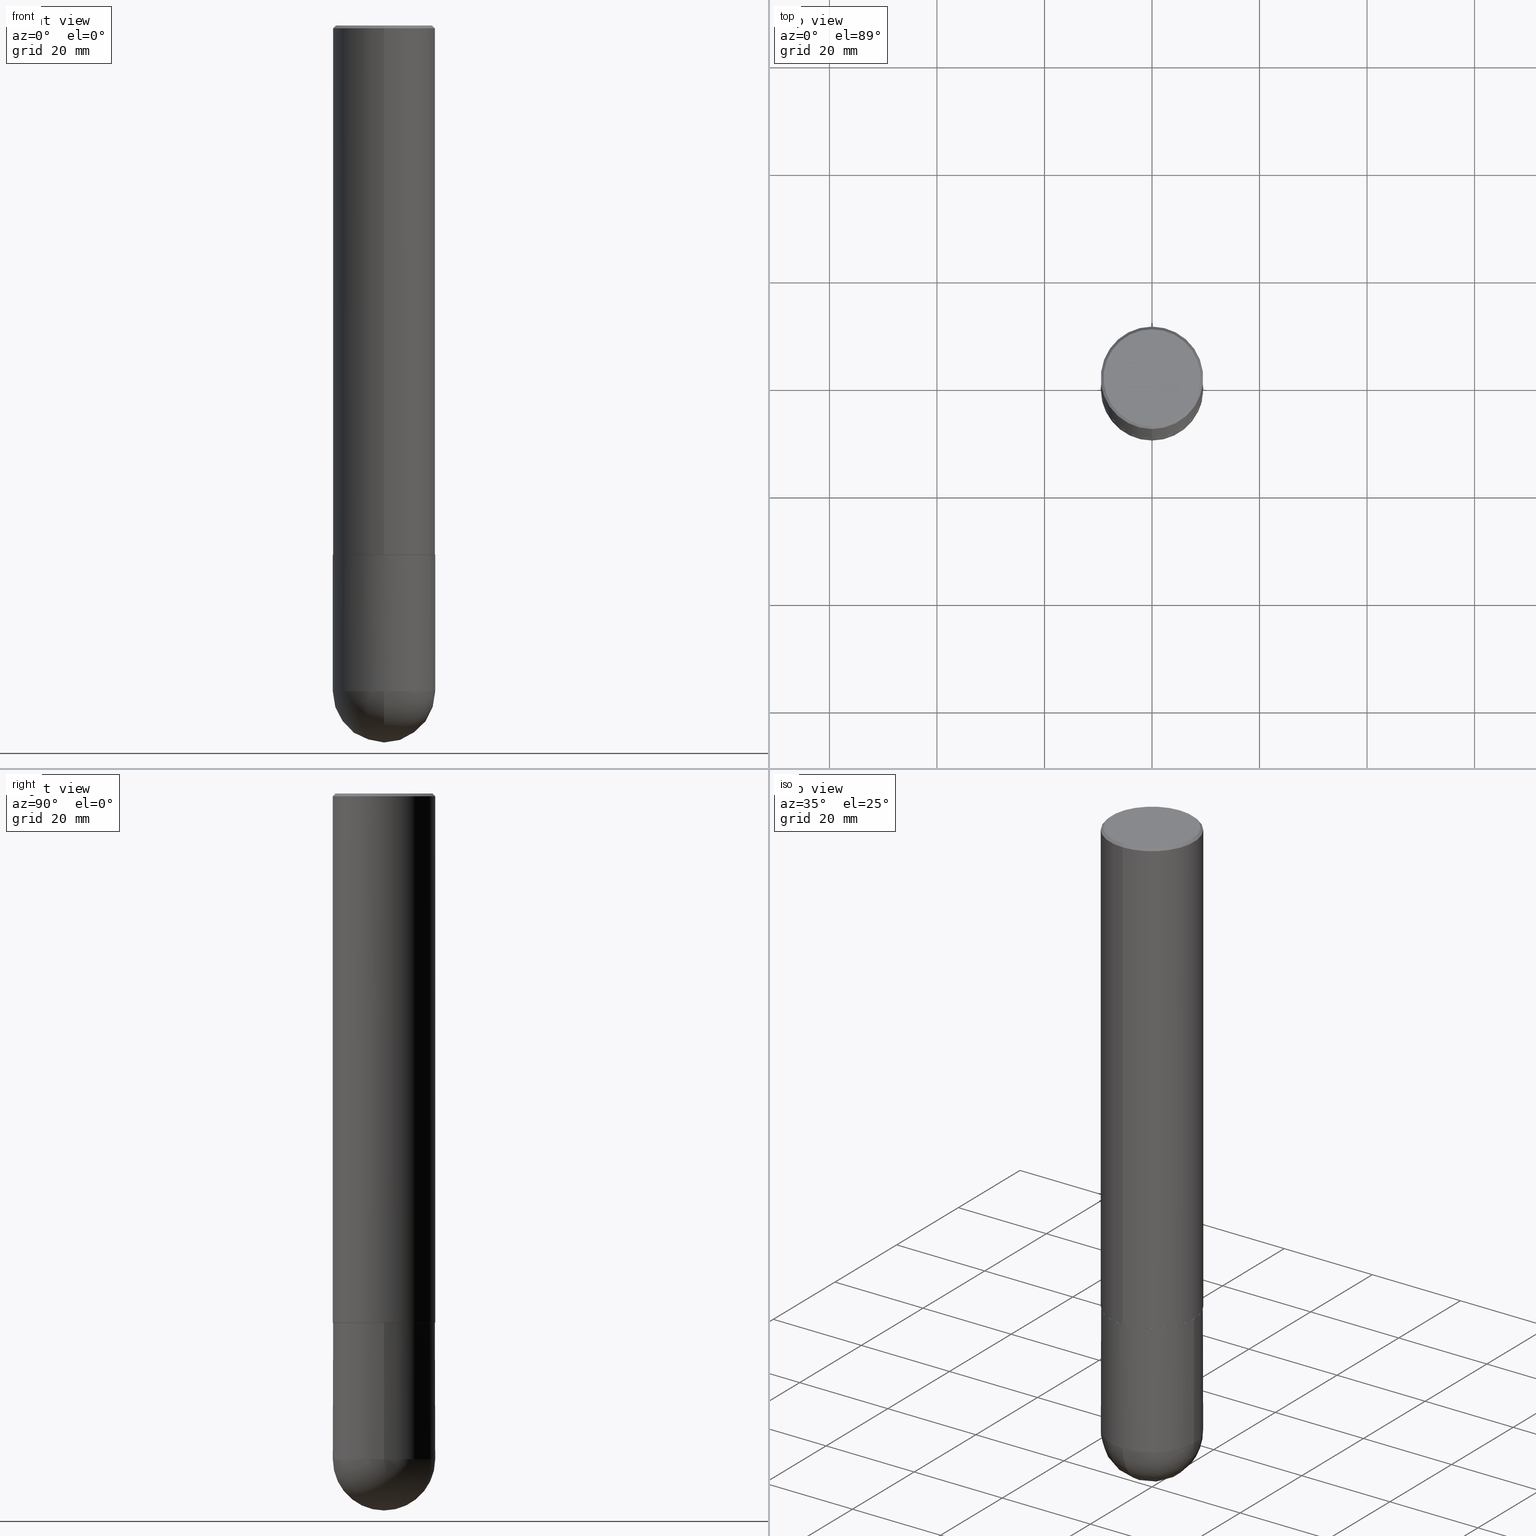
[diagram: canonical four-view strip — front | top / right | iso, engineering-drawing reading convention]
A machine part, canonical four-view strip (front | top / right | iso — engineering-drawing reading convention). The complete STEP part file that produces these views, byte-faithful:
ISO-10303-21;
HEADER;
FILE_DESCRIPTION (( 'STEP AP203' ),
    '1' );
FILE_NAME ('32297.STEP',
    '2024-02-21T17:42:51',
    ( '' ),
    ( '' ),
    'SwSTEP 2.0',
    'SolidWorks 2023',
    '' );
FILE_SCHEMA (( 'CONFIG_CONTROL_DESIGN' ));
ENDSEC;

DATA;
#1 = DIRECTION ( 'NONE',  ( -2.445468806185136597E-29, 3.491481338843145583E-15, 1.000000000000000000 ) ) ;
#2 = EDGE_CURVE ( 'NONE', #81, #117, #255, .T. ) ;
#3 = AXIS2_PLACEMENT_3D ( 'NONE', #305, #393, #34 ) ;
#4 = AXIS2_PLACEMENT_3D ( 'NONE', #386, #92, #218 ) ;
#5 = EDGE_LOOP ( 'NONE', ( #336, #18 ) ) ;
#6 = PERSON_AND_ORGANIZATION_ROLE ( 'creator' ) ;
#7 = DIRECTION ( 'NONE',  ( -2.445496861697833263E-29, 3.491441161752143275E-15, 1.000000000000000000 ) ) ;
#8 = LINE ( 'NONE', #105, #153 ) ;
#9 = EDGE_CURVE ( 'NONE', #362, #295, #199, .T. ) ;
#10 = DIRECTION ( 'NONE',  ( -2.445496861697833263E-29, 3.491441161752143669E-15, 1.000000000000000000 ) ) ;
#11 = AXIS2_PLACEMENT_3D ( 'NONE', #103, #236, #372 ) ;
#12 = CARTESIAN_POINT ( 'NONE',  ( 1.192166043015254091E-28, -1.702097152686033664E-14, -4.875000000000000000 ) ) ;
#13 = CARTESIAN_POINT ( 'NONE',  ( 0.000000000000000000, 0.000000000000000000, 0.000000000000000000 ) ) ;
#14 = CARTESIAN_POINT ( 'NONE',  ( 2.478951750578625787E-15, 0.3550000000000001488, -1.284288125001718683E-15 ) ) ;
#15 = ORIENTED_EDGE ( 'NONE', *, *, #392, .F. ) ;
#16 = AXIS2_PLACEMENT_3D ( 'NONE', #91, #58, #154 ) ;
#17 = DIRECTION ( 'NONE',  ( 5.024295867789777373E-15, 0.7071067811867913777, 0.7071067811863036567 ) ) ;
#18 = ORIENTED_EDGE ( 'NONE', *, *, #9, .T. ) ;
#19 = ORIENTED_EDGE ( 'NONE', *, *, #349, .T. ) ;
#20 = EDGE_LOOP ( 'NONE', ( #229, #292, #15, #367 ) ) ;
#21 = CALENDAR_DATE ( 2024, 21, 2 ) ;
#22 = CIRCLE ( 'NONE', #207, 0.3750000000000000555 ) ;
#23 = PRODUCT_DEFINITION_FORMATION_WITH_SPECIFIED_SOURCE ( 'ANY', '', #41, .NOT_KNOWN. ) ;
#24 = ORIENTED_EDGE ( 'NONE', *, *, #326, .T. ) ;
#25 = CARTESIAN_POINT ( 'NONE',  ( 0.000000000000000000, 0.000000000000000000, 0.000000000000000000 ) ) ;
#26 = PRODUCT_DEFINITION ( 'UNKNOWN', '', #23, #310 ) ;
#27 = LINE ( 'NONE', #256, #317 ) ;
#28 = ORIENTED_EDGE ( 'NONE', *, *, #392, .T. ) ;
#29 = CARTESIAN_POINT ( 'NONE',  ( 9.476300339079104245E-29, -1.352933450178955312E-14, -3.875000000000000000 ) ) ;
#30 = CIRCLE ( 'NONE', #401, 0.3750000000000001110 ) ;
#31 =( GEOMETRIC_REPRESENTATION_CONTEXT ( 3 ) GLOBAL_UNCERTAINTY_ASSIGNED_CONTEXT ( ( #291 ) ) GLOBAL_UNIT_ASSIGNED_CONTEXT ( ( #265, #268, #194 ) ) REPRESENTATION_CONTEXT ( 'NONE', 'WORKASPACE' ) );
#32 = EDGE_LOOP ( 'NONE', ( #28, #111, #321, #331 ) ) ;
#33 = MANIFOLD_SOLID_BREP ( 'Body-Move/Copy2[1]', #106 ) ;
#34 = DIRECTION ( 'NONE',  ( -6.982962677686265922E-15, -1.000000000000000000, 3.491441161752143669E-15 ) ) ;
#35 = PERSON_AND_ORGANIZATION ( #359, #107 ) ;
#36 = CARTESIAN_POINT ( 'NONE',  ( 0.3750000000000001110, -2.618611004132350411E-15, 1.828566290923476483E-29 ) ) ;
#37 = DIRECTION ( 'NONE',  ( 4.937700262164538576E-15, 0.7071067811865437980, -0.7071067811865512365 ) ) ;
#38 = DIRECTION ( 'NONE',  ( -2.445468806185136597E-29, 3.491481338843145583E-15, 1.000000000000000000 ) ) ;
#39 = EDGE_CURVE ( 'NONE', #182, #354, #287, .T. ) ;
#40 = DIRECTION ( 'NONE',  ( -2.445468806185136597E-29, 3.491481338843145583E-15, 1.000000000000000000 ) ) ;
#41 = PRODUCT ( '32297', '32297', '', ( #73 ) ) ;
#42 = CARTESIAN_POINT ( 'NONE',  ( 0.000000000000000000, 0.000000000000000000, 0.000000000000000000 ) ) ;
#43 = CARTESIAN_POINT ( 'NONE',  ( 4.890993723395688036E-31, -6.982882323504315786E-17, -0.02000000000000008715 ) ) ;
#44 = CARTESIAN_POINT ( 'NONE',  ( 1.252362582248019568E-28, -1.878149726958255384E-14, -5.250000000000000000 ) ) ;
#45 = DIRECTION ( 'NONE',  ( 0.000000000000000000, 0.000000000000000000, 1.000000000000000000 ) ) ;
#46 = CARTESIAN_POINT ( 'NONE',  ( 2.618611004132444680E-15, 0.3749999999999865108, -3.875000000000001332 ) ) ;
#47 = DIRECTION ( 'NONE',  ( 1.000000000000000000, -6.982962677686265922E-15, 4.876176775795935793E-29 ) ) ;
#48 = EDGE_CURVE ( 'NONE', #158, #300, #252, .T. ) ;
#49 = DIRECTION ( 'NONE',  ( -2.445496861697833263E-29, 3.491441161752143275E-15, 1.000000000000000000 ) ) ;
#50 = DIRECTION ( 'NONE',  ( -1.000000000000000000, 7.105427357601001070E-15, -4.926315508542082329E-29 ) ) ;
#51 = LOCAL_TIME ( 12, 42, 51.00000000000000000, #360 ) ;
#52 = EDGE_CURVE ( 'NONE', #100, #117, #22, .T. ) ;
#53 = CC_DESIGN_PERSON_AND_ORGANIZATION_ASSIGNMENT ( #394, #201, ( #41 ) ) ;
#54 = ORIENTED_EDGE ( 'NONE', *, *, #183, .T. ) ;
#55 = AXIS2_PLACEMENT_3D ( 'NONE', #332, #262, #264 ) ;
#56 = ORIENTED_EDGE ( 'NONE', *, *, #2, .T. ) ;
#57 = AXIS2_PLACEMENT_3D ( 'NONE', #157, #185, #323 ) ;
#58 = DIRECTION ( 'NONE',  ( -2.445496861697833263E-29, 3.491441161752143275E-15, 1.000000000000000000 ) ) ;
#59 = FACE_OUTER_BOUND ( 'NONE', #348, .T. ) ;
#60 = CIRCLE ( 'NONE', #314, 0.3750000000000004996 ) ;
#61 = ADVANCED_FACE ( 'NONE', ( #129 ), #328, .T. ) ;
#62 = CC_DESIGN_APPROVAL ( #152, ( #26 ) ) ;
#63 = EDGE_LOOP ( 'NONE', ( #285, #116 ) ) ;
#64 = FACE_OUTER_BOUND ( 'NONE', #32, .T. ) ;
#65 = CALENDAR_DATE ( 2024, 21, 2 ) ;
#66 = ORIENTED_EDGE ( 'NONE', *, *, #68, .T. ) ;
#67 = APPLICATION_CONTEXT ( 'configuration controlled 3d designs of mechanical parts and assemblies' ) ;
#68 = EDGE_CURVE ( 'NONE', #301, #94, #296, .T. ) ;
#69 = CARTESIAN_POINT ( 'NONE',  ( 9.476191623967404313E-29, -1.352949018801718908E-14, -3.875000000000000000 ) ) ;
#70 = COORDINATED_UNIVERSAL_TIME_OFFSET ( 5, 0, .BEHIND. ) ;
#71 = DIRECTION ( 'NONE',  ( -6.982962677686265922E-15, -1.000000000000000000, 3.494488891895535640E-15 ) ) ;
#72 = CONICAL_SURFACE ( 'NONE', #357, 0.3739999999999999991, 0.7853981633977896726 ) ;
#73 = MECHANICAL_CONTEXT ( 'NONE', #67, 'mechanical' ) ;
#74 = PLANE ( 'NONE',  #389 ) ;
#75 = PRODUCT_DEFINITION_SHAPE ( 'NONE', 'NONE',  #26 ) ;
#76 = LINE ( 'NONE', #403, #155 ) ;
#77 = APPLICATION_PROTOCOL_DEFINITION ( 'international standard', 'config_control_design', 1994, #67 ) ;
#78 = CARTESIAN_POINT ( 'NONE',  ( -2.618611004132258903E-15, -0.3750000000000140443, -3.873999999999999222 ) ) ;
#79 = AXIS2_PLACEMENT_3D ( 'NONE', #25, #277, #47 ) ;
#80 = LOCAL_TIME ( 12, 42, 51.00000000000000000, #251 ) ;
#81 = VERTEX_POINT ( 'NONE', #189 ) ;
#82 = CARTESIAN_POINT ( 'NONE',  ( 2.618611004132351200E-15, 0.3750000000000000555, -0.02000000000000139513 ) ) ;
#83 = ADVANCED_FACE ( 'NONE', ( #59 ), #408, .F. ) ;
#84 = SPHERICAL_SURFACE ( 'NONE', #281, 0.3750000000000001110 ) ;
#85 = CC_DESIGN_APPROVAL ( #272, ( #175 ) ) ;
#86 = CARTESIAN_POINT ( 'NONE',  ( 9.476191623967404313E-29, -1.352949018801718908E-14, -3.875000000000000000 ) ) ;
#87 = ORIENTED_EDGE ( 'NONE', *, *, #122, .F. ) ;
#88 = PERSON_AND_ORGANIZATION ( #359, #107 ) ;
#89 = ORIENTED_EDGE ( 'NONE', *, *, #171, .T. ) ;
#90 = CARTESIAN_POINT ( 'NONE',  ( -2.611628041454568944E-15, -0.3740000000000135438, -3.874999999999999112 ) ) ;
#91 = CARTESIAN_POINT ( 'NONE',  ( 2.192461916690650386E-45, -3.130182623171802630E-31, -8.965302515941450071E-17 ) ) ;
#92 = DIRECTION ( 'NONE',  ( -2.445496861697833263E-29, 3.491441161752143275E-15, 1.000000000000000000 ) ) ;
#93 = PERSON_AND_ORGANIZATION_ROLE ( 'creator' ) ;
#94 = VERTEX_POINT ( 'NONE', #90 ) ;
#95 = LENGTH_MEASURE_WITH_UNIT ( LENGTH_MEASURE( 0.02539999999999999897 ), #355 );
#96 = VECTOR ( 'NONE', #37, 39.37007874015748143 ) ;
#97 = CC_DESIGN_APPROVAL ( #244, ( #23 ) ) ;
#98 = DIRECTION ( 'NONE',  ( -6.982962677686265922E-15, -1.000000000000000000, 3.494488891895535640E-15 ) ) ;
#99 = EDGE_CURVE ( 'NONE', #295, #362, #104, .T. ) ;
#100 = VERTEX_POINT ( 'NONE', #223 ) ;
#101 = DATE_TIME_ROLE ( 'creation_date' ) ;
#102 = ADVANCED_BREP_SHAPE_REPRESENTATION ( '32297', ( #33, #329, #168 ), #31 ) ;
#103 = CARTESIAN_POINT ( 'NONE',  ( 1.159054065223865578E-28, -1.749515389500038536E-14, -4.875000000000000000 ) ) ;
#104 = CIRCLE ( 'NONE', #304, 0.3550000000000001488 ) ;
#105 = CARTESIAN_POINT ( 'NONE',  ( -2.611628041454568944E-15, -0.3740000000000135438, -3.874999999999999112 ) ) ;
#106 = CLOSED_SHELL ( 'NONE', ( #219, #202, #366, #151, #374 ) ) ;
#107 = ORGANIZATION ( 'UNSPECIFIED', 'UNSPECIFIED', '' ) ;
#108 = DIRECTION ( 'NONE',  ( -6.982962677686266711E-15, -1.000000000000000000, 2.913971193241876822E-15 ) ) ;
#109 = ORIENTED_EDGE ( 'NONE', *, *, #195, .T. ) ;
#110 = LINE ( 'NONE', #210, #181 ) ;
#111 = ORIENTED_EDGE ( 'NONE', *, *, #383, .T. ) ;
#112 = CARTESIAN_POINT ( 'NONE',  ( 4.890993723395688036E-31, -6.982882323504315786E-17, -0.02000000000000008715 ) ) ;
#113 = ORIENTED_EDGE ( 'NONE', *, *, #283, .F. ) ;
#114 = ORIENTED_EDGE ( 'NONE', *, *, #52, .F. ) ;
#115 = CC_DESIGN_PERSON_AND_ORGANIZATION_ASSIGNMENT ( #124, #93, ( #23 ) ) ;
#116 = ORIENTED_EDGE ( 'NONE', *, *, #52, .T. ) ;
#117 = VERTEX_POINT ( 'NONE', #361 ) ;
#118 = ADVANCED_FACE ( 'NONE', ( #190 ), #72, .T. ) ;
#119 = CYLINDRICAL_SURFACE ( 'NONE', #57, 0.3750000000000001110 ) ;
#120 = AXIS2_PLACEMENT_3D ( 'NONE', #46, #375, #239 ) ;
#121 = DIRECTION ( 'NONE',  ( -6.982962677686266711E-15, -1.000000000000000000, 3.491441161752143275E-15 ) ) ;
#122 = EDGE_CURVE ( 'NONE', #117, #100, #315, .T. ) ;
#123 = ORIENTED_EDGE ( 'NONE', *, *, #192, .F. ) ;
#124 = PERSON_AND_ORGANIZATION ( #359, #107 ) ;
#125 = DIRECTION ( 'NONE',  ( -2.445496861697833263E-29, 3.491441161752143275E-15, 1.000000000000000000 ) ) ;
#126 = ORIENTED_EDGE ( 'NONE', *, *, #316, .F. ) ;
#127 = CIRCLE ( 'NONE', #234, 0.3739999999999999991 ) ;
#128 = CC_DESIGN_PERSON_AND_ORGANIZATION_ASSIGNMENT ( #88, #293, ( #23 ) ) ;
#129 = FACE_OUTER_BOUND ( 'NONE', #20, .T. ) ;
#130 = APPLICATION_CONTEXT ( 'configuration controlled 3d designs of mechanical parts and assemblies' ) ;
#131 = DIRECTION ( 'NONE',  ( -4.937700262166233838E-15, -0.7071067811867864927, 0.7071067811863085417 ) ) ;
#132 = AXIS2_PLACEMENT_3D ( 'NONE', #276, #172, #369 ) ;
#133 = LOCAL_TIME ( 12, 42, 51.00000000000000000, #204 ) ;
#134 = EDGE_CURVE ( 'NONE', #94, #301, #127, .T. ) ;
#135 = CARTESIAN_POINT ( 'NONE',  ( 9.473854842217407742E-29, -1.352584306062780307E-14, -3.874000000000000110 ) ) ;
#136 = DIRECTION ( 'NONE',  ( 6.982962677686265922E-15, 1.000000000000000000, -3.494488891895535640E-15 ) ) ;
#137 = DIRECTION ( 'NONE',  ( -2.445468806185136597E-29, 3.491481338843145583E-15, 1.000000000000000000 ) ) ;
#138 = ADVANCED_FACE ( 'NONE', ( #166 ), #74, .F. ) ;
#139 = ADVANCED_FACE ( 'NONE', ( #238 ), #409, .T. ) ;
#140 = VECTOR ( 'NONE', #385, 39.37007874015748143 ) ;
#141 = DIRECTION ( 'NONE',  ( 1.000000000000000000, -6.982962677686260400E-15, 0.000000000000000000 ) ) ;
#142 = FACE_OUTER_BOUND ( 'NONE', #178, .T. ) ;
#143 = FACE_OUTER_BOUND ( 'NONE', #173, .T. ) ;
#144 = CARTESIAN_POINT ( 'NONE',  ( 2.657429831742868958E-15, 0.3739999999999865099, -3.875000000000001332 ) ) ;
#145 = ORIENTED_EDGE ( 'NONE', *, *, #179, .F. ) ;
#146 = DIRECTION ( 'NONE',  ( 6.982962677686265922E-15, 1.000000000000000000, -2.913971193241879977E-15 ) ) ;
#147 = EDGE_LOOP ( 'NONE', ( #211, #363, #156, #109 ) ) ;
#148 = CALENDAR_DATE ( 2024, 21, 2 ) ;
#149 = AXIS2_PLACEMENT_3D ( 'NONE', #402, #233, #136 ) ;
#150 = APPROVAL_DATE_TIME ( #248, #244 ) ;
#151 = ADVANCED_FACE ( 'NONE', ( #312 ), #397, .F. ) ;
#152 = APPROVAL ( #237, 'UNSPECIFIED' ) ;
#153 = VECTOR ( 'NONE', #131, 39.37007874015748143 ) ;
#154 = DIRECTION ( 'NONE',  ( -6.982962677686266711E-15, -1.000000000000000000, 3.491441161752143275E-15 ) ) ;
#155 = VECTOR ( 'NONE', #169, 39.37007874015748143 ) ;
#156 = ORIENTED_EDGE ( 'NONE', *, *, #316, .T. ) ;
#157 = CARTESIAN_POINT ( 'NONE',  ( 0.000000000000000000, 0.000000000000000000, 0.000000000000000000 ) ) ;
#158 = VERTEX_POINT ( 'NONE', #376 ) ;
#159 = CARTESIAN_POINT ( 'NONE',  ( 2.192461916690650386E-45, -3.130182623171802630E-31, -8.965302515941450071E-17 ) ) ;
#160 = APPROVAL_STATUS ( 'not_yet_approved' ) ;
#161 = ORIENTED_EDGE ( 'NONE', *, *, #247, .F. ) ;
#162 = CARTESIAN_POINT ( 'NONE',  ( 0.000000000000000000, 0.000000000000000000, 0.000000000000000000 ) ) ;
#163 = LINE ( 'NONE', #203, #245 ) ;
#164 = CARTESIAN_POINT ( 'NONE',  ( 2.660982545421671434E-15, 0.3739999999999865099, -3.875000000000001332 ) ) ;
#165 = PERSON_AND_ORGANIZATION ( #359, #107 ) ;
#166 = FACE_OUTER_BOUND ( 'NONE', #5, .T. ) ;
#167 = CIRCLE ( 'NONE', #406, 0.3750000000000001110 ) ;
#168 = AXIS2_PLACEMENT_3D ( 'NONE', #42, #45, #373 ) ;
#169 = DIRECTION ( 'NONE',  ( -2.445468806185136877E-29, 3.491481338843145188E-15, 1.000000000000000000 ) ) ;
#170 = FACE_OUTER_BOUND ( 'NONE', #224, .T. ) ;
#171 = EDGE_CURVE ( 'NONE', #94, #177, #8, .T. ) ;
#172 = DIRECTION ( 'NONE',  ( -2.445468806185136597E-29, 3.491481338843145583E-15, 1.000000000000000000 ) ) ;
#173 = EDGE_LOOP ( 'NONE', ( #214, #24, #87, #250, #196 ) ) ;
#174 = AXIS2_PLACEMENT_3D ( 'NONE', #368, #412, #98 ) ;
#175 = SECURITY_CLASSIFICATION ( '', '', #217 ) ;
#176 = DIRECTION ( 'NONE',  ( -6.982962677686266711E-15, -1.000000000000000000, 3.491441161752143669E-15 ) ) ;
#177 = VERTEX_POINT ( 'NONE', #78 ) ;
#178 = EDGE_LOOP ( 'NONE', ( #286, #191, #319, #193 ) ) ;
#179 = EDGE_CURVE ( 'NONE', #405, #81, #351, .T. ) ;
#180 = VECTOR ( 'NONE', #17, 39.37007874015748143 ) ;
#181 = VECTOR ( 'NONE', #278, 39.37007874015748143 ) ;
#182 = VERTEX_POINT ( 'NONE', #206 ) ;
#183 = EDGE_CURVE ( 'NONE', #340, #405, #30, .T. ) ;
#184 = EDGE_LOOP ( 'NONE', ( #258, #380, #123, #145 ) ) ;
#185 = DIRECTION ( 'NONE',  ( -2.445468806185136597E-29, 3.491481338843145583E-15, 1.000000000000000000 ) ) ;
#186 = CC_DESIGN_PERSON_AND_ORGANIZATION_ASSIGNMENT ( #356, #320, ( #175 ) ) ;
#187 = PERSON_AND_ORGANIZATION ( #359, #107 ) ;
#188 = DIRECTION ( 'NONE',  ( -2.445468806185136597E-29, 3.491481338843145583E-15, 1.000000000000000000 ) ) ;
#189 = CARTESIAN_POINT ( 'NONE',  ( 0.3750000000000001110, -1.789384186157111051E-14, -4.875000000000000000 ) ) ;
#190 = FACE_OUTER_BOUND ( 'NONE', #379, .T. ) ;
#191 = ORIENTED_EDGE ( 'NONE', *, *, #247, .T. ) ;
#192 = EDGE_CURVE ( 'NONE', #81, #158, #267, .T. ) ;
#193 = ORIENTED_EDGE ( 'NONE', *, *, #195, .F. ) ;
#194 =( NAMED_UNIT ( * ) SI_UNIT ( $, .STERADIAN. ) SOLID_ANGLE_UNIT ( ) );
#195 = EDGE_CURVE ( 'NONE', #354, #182, #205, .T. ) ;
#196 = ORIENTED_EDGE ( 'NONE', *, *, #192, .T. ) ;
#197 = CARTESIAN_POINT ( 'NONE',  ( 9.476300339079104245E-29, -1.352933450178955312E-14, -3.875000000000000000 ) ) ;
#198 = CARTESIAN_POINT ( 'NONE',  ( -0.3750000000000001110, -1.261069559833838637E-14, -4.875000000000000000 ) ) ;
#199 = CIRCLE ( 'NONE', #16, 0.3550000000000001488 ) ;
#200 = DIMENSIONAL_EXPONENTS ( 1.000000000000000000, 0.000000000000000000, 0.000000000000000000, 0.000000000000000000, 0.000000000000000000, 0.000000000000000000, 0.000000000000000000 ) ;
#201 = PERSON_AND_ORGANIZATION_ROLE ( 'design_owner' ) ;
#202 = ADVANCED_FACE ( 'NONE', ( #170 ), #395, .T. ) ;
#203 = CARTESIAN_POINT ( 'NONE',  ( -2.618611004132351989E-15, -0.3750000000000002776, 1.309290435657054813E-15 ) ) ;
#204 = COORDINATED_UNIVERSAL_TIME_OFFSET ( 5, 0, .BEHIND. ) ;
#205 = CIRCLE ( 'NONE', #381, 0.3750000000000001110 ) ;
#206 = CARTESIAN_POINT ( 'NONE',  ( -2.572686749164324336E-15, -0.3750000000000001665, -0.01999999999999877570 ) ) ;
#207 = AXIS2_PLACEMENT_3D ( 'NONE', #69, #38, #226 ) ;
#208 = FACE_OUTER_BOUND ( 'NONE', #216, .T. ) ;
#209 = PRODUCT_RELATED_PRODUCT_CATEGORY ( 'detail', '', ( #41 ) ) ;
#210 = CARTESIAN_POINT ( 'NONE',  ( -2.572686749164324336E-15, -0.3750000000000001665, -0.01999999999999877570 ) ) ;
#211 = ORIENTED_EDGE ( 'NONE', *, *, #349, .F. ) ;
#212 = DIRECTION ( 'NONE',  ( 1.000000000000000000, -6.982962677686265922E-15, 4.883557194083112340E-29 ) ) ;
#213 = AXIS2_PLACEMENT_3D ( 'NONE', #343, #40, #347 ) ;
#214 = ORIENTED_EDGE ( 'NONE', *, *, #48, .T. ) ;
#215 = EDGE_CURVE ( 'NONE', #177, #182, #163, .T. ) ;
#216 = EDGE_LOOP ( 'NONE', ( #282, #19, #384, #126 ) ) ;
#217 = SECURITY_CLASSIFICATION_LEVEL ( 'unclassified' ) ;
#218 = DIRECTION ( 'NONE',  ( -6.982962677686266711E-15, -1.000000000000000000, 2.913971193241876822E-15 ) ) ;
#219 = ADVANCED_FACE ( 'NONE', ( #143 ), #318, .T. ) ;
#220 = ORIENTED_EDGE ( 'NONE', *, *, #48, .F. ) ;
#221 = DATE_TIME_ROLE ( 'classification_date' ) ;
#222 = APPROVAL_DATE_TIME ( #411, #272 ) ;
#223 = CARTESIAN_POINT ( 'NONE',  ( -0.3750000000000000555, -1.261069559833838480E-14, -3.875000000000000000 ) ) ;
#224 = EDGE_LOOP ( 'NONE', ( #350, #54, #260, #220 ) ) ;
#225 = SHAPE_DEFINITION_REPRESENTATION ( #75, #102 ) ;
#226 = DIRECTION ( 'NONE',  ( 1.000000000000000000, -6.982962677686266711E-15, 0.000000000000000000 ) ) ;
#227 = CARTESIAN_POINT ( 'NONE',  ( -2.664535259100258157E-15, -0.3750000000000173195, -4.874999999999999112 ) ) ;
#228 = CIRCLE ( 'NONE', #261, 0.3750000000000001110 ) ;
#229 = ORIENTED_EDGE ( 'NONE', *, *, #134, .T. ) ;
#230 = EDGE_CURVE ( 'NONE', #300, #405, #167, .T. ) ;
#231 = DIRECTION ( 'NONE',  ( -2.445496861697833263E-29, 3.491441161752143275E-15, 1.000000000000000000 ) ) ;
#232 = ORIENTED_EDGE ( 'NONE', *, *, #179, .T. ) ;
#233 = DIRECTION ( 'NONE',  ( 2.445496861697833263E-29, -3.491441161752143275E-15, -1.000000000000000000 ) ) ;
#234 = AXIS2_PLACEMENT_3D ( 'NONE', #242, #270, #342 ) ;
#235 = LOCAL_TIME ( 12, 42, 51.00000000000000000, #365 ) ;
#236 = DIRECTION ( 'NONE',  ( -1.000000000000000000, 6.982962677686265922E-15, -4.883557194083112340E-29 ) ) ;
#237 = APPROVAL_STATUS ( 'not_yet_approved' ) ;
#238 = FACE_OUTER_BOUND ( 'NONE', #147, .T. ) ;
#239 = DIRECTION ( 'NONE',  ( -1.000000000000000000, 6.982962677686265922E-15, -4.876176775795935793E-29 ) ) ;
#240 = AXIS2_PLACEMENT_3D ( 'NONE', #162, #7, #333 ) ;
#241 = CARTESIAN_POINT ( 'NONE',  ( 1.159054065223865578E-28, -1.749515389500038536E-14, -4.875000000000000000 ) ) ;
#242 = CARTESIAN_POINT ( 'NONE',  ( 9.476300339079104245E-29, -1.352933450178955312E-14, -3.875000000000000000 ) ) ;
#243 = DIRECTION ( 'NONE',  ( 6.982962677686265922E-15, 1.000000000000000000, -3.494488891895535640E-15 ) ) ;
#244 = APPROVAL ( #160, 'UNSPECIFIED' ) ;
#245 = VECTOR ( 'NONE', #10, 39.37007874015748143 ) ;
#246 = DIRECTION ( 'NONE',  ( -2.445496861697833263E-29, 3.491441161752143669E-15, 1.000000000000000000 ) ) ;
#247 = EDGE_CURVE ( 'NONE', #299, #177, #60, .T. ) ;
#248 = DATE_AND_TIME ( #21, #269 ) ;
#249 = ORIENTED_EDGE ( 'NONE', *, *, #230, .T. ) ;
#250 = ORIENTED_EDGE ( 'NONE', *, *, #2, .F. ) ;
#251 = COORDINATED_UNIVERSAL_TIME_OFFSET ( 5, 0, .BEHIND. ) ;
#252 = CIRCLE ( 'NONE', #279, 0.3750000000000001110 ) ;
#253 = APPROVAL_ROLE ( '' ) ;
#254 = DIRECTION ( 'NONE',  ( -2.445496861697833263E-29, 3.491441161752143275E-15, 1.000000000000000000 ) ) ;
#255 = LINE ( 'NONE', #36, #140 ) ;
#256 = CARTESIAN_POINT ( 'NONE',  ( 2.664535259100377275E-15, 0.3750000000000002776, -1.309290435657054813E-15 ) ) ;
#257 = EDGE_CURVE ( 'NONE', #340, #158, #228, .T. ) ;
#258 = ORIENTED_EDGE ( 'NONE', *, *, #183, .F. ) ;
#259 = APPROVAL_DATE_TIME ( #338, #152 ) ;
#260 = ORIENTED_EDGE ( 'NONE', *, *, #230, .F. ) ;
#261 = AXIS2_PLACEMENT_3D ( 'NONE', #241, #212, #274 ) ;
#262 = DIRECTION ( 'NONE',  ( -2.445496861697833263E-29, 3.491441161752143275E-15, 1.000000000000000000 ) ) ;
#263 = CALENDAR_DATE ( 2024, 21, 2 ) ;
#264 = DIRECTION ( 'NONE',  ( -6.982962677686266711E-15, -1.000000000000000000, 2.921762560068730595E-15 ) ) ;
#265 =( CONVERSION_BASED_UNIT ( 'INCH', #95 ) LENGTH_UNIT ( ) NAMED_UNIT ( #200 ) );
#266 = ADVANCED_FACE ( 'NONE', ( #208 ), #322, .T. ) ;
#267 = CIRCLE ( 'NONE', #132, 0.3750000000000001110 ) ;
#268 =( NAMED_UNIT ( * ) PLANE_ANGLE_UNIT ( ) SI_UNIT ( $, .RADIAN. ) );
#269 = LOCAL_TIME ( 12, 42, 51.00000000000000000, #70 ) ;
#270 = DIRECTION ( 'NONE',  ( -2.445496861697833263E-29, 3.491441161752143275E-15, 1.000000000000000000 ) ) ;
#271 = FACE_OUTER_BOUND ( 'NONE', #353, .T. ) ;
#272 = APPROVAL ( #324, 'UNSPECIFIED' ) ;
#273 = DIRECTION ( 'NONE',  ( 2.445496861697832703E-29, -3.491441161752143669E-15, -1.000000000000000000 ) ) ;
#274 = DIRECTION ( 'NONE',  ( 6.982962677686265922E-15, 1.000000000000000000, 0.000000000000000000 ) ) ;
#275 = CARTESIAN_POINT ( 'NONE',  ( 1.159054065223865578E-28, -1.749515389500038536E-14, -4.875000000000000000 ) ) ;
#276 = CARTESIAN_POINT ( 'NONE',  ( 1.192166043015254091E-28, -1.702097152686033664E-14, -4.875000000000000000 ) ) ;
#277 = DIRECTION ( 'NONE',  ( -2.445468806185136597E-29, 3.491481338843145583E-15, 1.000000000000000000 ) ) ;
#278 = DIRECTION ( 'NONE',  ( -4.851104656540954809E-15, -0.7071067811865486830, -0.7071067811865463515 ) ) ;
#279 = AXIS2_PLACEMENT_3D ( 'NONE', #387, #1, #302 ) ;
#280 = DIRECTION ( 'NONE',  ( 6.982962677686265922E-15, 1.000000000000000000, -3.491441161752143669E-15 ) ) ;
#281 = AXIS2_PLACEMENT_3D ( 'NONE', #275, #399, #146 ) ;
#282 = ORIENTED_EDGE ( 'NONE', *, *, #9, .F. ) ;
#283 = EDGE_CURVE ( 'NONE', #301, #299, #404, .T. ) ;
#284 = DIRECTION ( 'NONE',  ( 2.445496861697833263E-29, -3.491441161752143275E-15, -1.000000000000000000 ) ) ;
#285 = ORIENTED_EDGE ( 'NONE', *, *, #122, .T. ) ;
#286 = ORIENTED_EDGE ( 'NONE', *, *, #383, .F. ) ;
#287 = CIRCLE ( 'NONE', #174, 0.3750000000000001110 ) ;
#288 = DIRECTION ( 'NONE',  ( 1.000000000000000000, -6.982962677686266711E-15, 0.000000000000000000 ) ) ;
#289 = DATE_AND_TIME ( #148, #80 ) ;
#290 = APPROVAL_PERSON_ORGANIZATION ( #165, #152, #311 ) ;
#291 = UNCERTAINTY_MEASURE_WITH_UNIT (LENGTH_MEASURE( 1.000000000000000082E-05 ), #265, 'distance_accuracy_value', 'NONE');
#292 = ORIENTED_EDGE ( 'NONE', *, *, #283, .T. ) ;
#293 = PERSON_AND_ORGANIZATION_ROLE ( 'design_supplier' ) ;
#294 = DIRECTION ( 'NONE',  ( -6.982962677686266711E-15, -1.000000000000000000, 2.921762560068730595E-15 ) ) ;
#295 = VERTEX_POINT ( 'NONE', #388 ) ;
#296 = CIRCLE ( 'NONE', #55, 0.3739999999999999991 ) ;
#297 = CC_DESIGN_DATE_AND_TIME_ASSIGNMENT ( #289, #221, ( #175 ) ) ;
#298 = CC_DESIGN_SECURITY_CLASSIFICATION ( #175, ( #23 ) ) ;
#299 = VERTEX_POINT ( 'NONE', #364 ) ;
#300 = VERTEX_POINT ( 'NONE', #198 ) ;
#301 = VERTEX_POINT ( 'NONE', #164 ) ;
#302 = DIRECTION ( 'NONE',  ( 1.000000000000000000, -6.982962677686260400E-15, 0.000000000000000000 ) ) ;
#303 = APPROVAL_ROLE ( '' ) ;
#304 = AXIS2_PLACEMENT_3D ( 'NONE', #159, #231, #121 ) ;
#305 = CARTESIAN_POINT ( 'NONE',  ( 9.476300339079104245E-29, -1.352933450178955312E-14, -3.875000000000000000 ) ) ;
#306 = LINE ( 'NONE', #337, #96 ) ;
#307 = PERSON_AND_ORGANIZATION ( #359, #107 ) ;
#308 = ADVANCED_FACE ( 'NONE', ( #64 ), #341, .T. ) ;
#309 = CARTESIAN_POINT ( 'NONE',  ( 1.159054065223865578E-28, -1.749515389500038536E-14, -4.875000000000000000 ) ) ;
#310 = DESIGN_CONTEXT ( 'detailed design', #130, 'design' ) ;
#311 = APPROVAL_ROLE ( '' ) ;
#312 = FACE_OUTER_BOUND ( 'NONE', #63, .T. ) ;
#313 = FACE_OUTER_BOUND ( 'NONE', #184, .T. ) ;
#314 = AXIS2_PLACEMENT_3D ( 'NONE', #135, #400, #108 ) ;
#315 = CIRCLE ( 'NONE', #396, 0.3750000000000000555 ) ;
#316 = EDGE_CURVE ( 'NONE', #295, #354, #306, .T. ) ;
#317 = VECTOR ( 'NONE', #246, 39.37007874015748143 ) ;
#318 = CYLINDRICAL_SURFACE ( 'NONE', #79, 0.3750000000000001110 ) ;
#319 = ORIENTED_EDGE ( 'NONE', *, *, #215, .T. ) ;
#320 = PERSON_AND_ORGANIZATION_ROLE ( 'classification_officer' ) ;
#321 = ORIENTED_EDGE ( 'NONE', *, *, #39, .F. ) ;
#322 = CONICAL_SURFACE ( 'NONE', #377, 0.3750000000000001110, 0.7853981633974465026 ) ;
#323 = DIRECTION ( 'NONE',  ( 1.000000000000000000, -6.982962677686265922E-15, 4.876176775795935793E-29 ) ) ;
#324 = APPROVAL_STATUS ( 'not_yet_approved' ) ;
#325 = ORIENTED_EDGE ( 'NONE', *, *, #68, .F. ) ;
#326 = EDGE_CURVE ( 'NONE', #300, #100, #76, .T. ) ;
#327 = CC_DESIGN_PERSON_AND_ORGANIZATION_ASSIGNMENT ( #307, #6, ( #26 ) ) ;
#328 = CONICAL_SURFACE ( 'NONE', #345, 0.3739999999999999991, 0.7853981633977896726 ) ;
#329 = MANIFOLD_SOLID_BREP ( 'Body-Move/Copy2[2]', #382 ) ;
#330 = CALENDAR_DATE ( 2024, 21, 2 ) ;
#331 = ORIENTED_EDGE ( 'NONE', *, *, #215, .F. ) ;
#332 = CARTESIAN_POINT ( 'NONE',  ( 9.476300339079104245E-29, -1.352933450178955312E-14, -3.875000000000000000 ) ) ;
#333 = DIRECTION ( 'NONE',  ( -6.982962677686266711E-15, -1.000000000000000000, 3.491441161752143669E-15 ) ) ;
#334 = DATE_AND_TIME ( #65, #235 ) ;
#335 = ADVANCED_FACE ( 'NONE', ( #142 ), #398, .T. ) ;
#336 = ORIENTED_EDGE ( 'NONE', *, *, #99, .T. ) ;
#337 = CARTESIAN_POINT ( 'NONE',  ( 2.618611004132351200E-15, 0.3750000000000000555, -0.02000000000000139513 ) ) ;
#338 = DATE_AND_TIME ( #263, #133 ) ;
#339 = APPROVAL_PERSON_ORGANIZATION ( #35, #244, #303 ) ;
#340 = VERTEX_POINT ( 'NONE', #44 ) ;
#341 = CYLINDRICAL_SURFACE ( 'NONE', #240, 0.3750000000000002776 ) ;
#342 = DIRECTION ( 'NONE',  ( -6.982962677686266711E-15, -1.000000000000000000, 2.921762560068730595E-15 ) ) ;
#343 = CARTESIAN_POINT ( 'NONE',  ( 1.192166043015254091E-28, -1.702097152686033664E-14, -4.875000000000000000 ) ) ;
#344 = DIRECTION ( 'NONE',  ( -2.445496861697833263E-29, 3.491441161752143275E-15, 1.000000000000000000 ) ) ;
#345 = AXIS2_PLACEMENT_3D ( 'NONE', #197, #254, #294 ) ;
#346 = DIRECTION ( 'NONE',  ( -7.105427357601001070E-15, -1.000000000000000000, 0.000000000000000000 ) ) ;
#347 = DIRECTION ( 'NONE',  ( 1.000000000000000000, -6.982962677686260400E-15, 0.000000000000000000 ) ) ;
#348 = EDGE_LOOP ( 'NONE', ( #352, #325 ) ) ;
#349 = EDGE_CURVE ( 'NONE', #362, #182, #110, .T. ) ;
#350 = ORIENTED_EDGE ( 'NONE', *, *, #257, .F. ) ;
#351 = CIRCLE ( 'NONE', #213, 0.3750000000000001110 ) ;
#352 = ORIENTED_EDGE ( 'NONE', *, *, #134, .F. ) ;
#353 = EDGE_LOOP ( 'NONE', ( #390, #249, #232, #56, #114 ) ) ;
#354 = VERTEX_POINT ( 'NONE', #82 ) ;
#355 =( LENGTH_UNIT ( ) NAMED_UNIT ( * ) SI_UNIT ( $, .METRE. ) );
#356 = PERSON_AND_ORGANIZATION ( #359, #107 ) ;
#357 = AXIS2_PLACEMENT_3D ( 'NONE', #29, #125, #407 ) ;
#358 = AXIS2_PLACEMENT_3D ( 'NONE', #13, #344, #176 ) ;
#359 = PERSON ( 'UNSPECIFIED', 'UNSPECIFIED', 'UNSPECIFIED', ('UNSPECIFIED'), ('UNSPECIFIED'), ('UNSPECIFIED') ) ;
#360 = COORDINATED_UNIVERSAL_TIME_OFFSET ( 5, 0, .BEHIND. ) ;
#361 = CARTESIAN_POINT ( 'NONE',  ( 0.3750000000000000555, -1.614810119214954068E-14, -3.875000000000000000 ) ) ;
#362 = VERTEX_POINT ( 'NONE', #378 ) ;
#363 = ORIENTED_EDGE ( 'NONE', *, *, #99, .F. ) ;
#364 = CARTESIAN_POINT ( 'NONE',  ( 2.664535259100425790E-15, 0.3749999999999870104, -3.874000000000001442 ) ) ;
#365 = COORDINATED_UNIVERSAL_TIME_OFFSET ( 5, 0, .BEHIND. ) ;
#366 = ADVANCED_FACE ( 'NONE', ( #313 ), #84, .T. ) ;
#367 = ORIENTED_EDGE ( 'NONE', *, *, #171, .F. ) ;
#368 = CARTESIAN_POINT ( 'NONE',  ( 4.890993723395688036E-31, -6.982882323504315786E-17, -0.02000000000000008715 ) ) ;
#369 = DIRECTION ( 'NONE',  ( 1.000000000000000000, -6.982962677686260400E-15, 0.000000000000000000 ) ) ;
#370 = CIRCLE ( 'NONE', #4, 0.3750000000000004996 ) ;
#371 = CC_DESIGN_DATE_AND_TIME_ASSIGNMENT ( #334, #101, ( #26 ) ) ;
#372 = DIRECTION ( 'NONE',  ( 6.982962677686265922E-15, 1.000000000000000000, -2.913971193241879977E-15 ) ) ;
#373 = DIRECTION ( 'NONE',  ( 1.000000000000000000, 0.000000000000000000, 0.000000000000000000 ) ) ;
#374 = ADVANCED_FACE ( 'NONE', ( #271 ), #119, .T. ) ;
#375 = DIRECTION ( 'NONE',  ( 2.438088387897960049E-29, -3.491481338843145188E-15, -1.000000000000000000 ) ) ;
#376 = CARTESIAN_POINT ( 'NONE',  ( 2.618611004132467951E-15, 0.3749999999999829026, -4.875000000000001776 ) ) ;
#377 = AXIS2_PLACEMENT_3D ( 'NONE', #112, #284, #243 ) ;
#378 = CARTESIAN_POINT ( 'NONE',  ( -2.504081769186609399E-15, -0.3550000000000001488, 1.149808587262596747E-15 ) ) ;
#379 = EDGE_LOOP ( 'NONE', ( #113, #66, #89, #161 ) ) ;
#380 = ORIENTED_EDGE ( 'NONE', *, *, #257, .T. ) ;
#381 = AXIS2_PLACEMENT_3D ( 'NONE', #43, #49, #71 ) ;
#382 = CLOSED_SHELL ( 'NONE', ( #61, #308, #266, #139, #335, #118, #83, #138 ) ) ;
#383 = EDGE_CURVE ( 'NONE', #299, #354, #27, .T. ) ;
#384 = ORIENTED_EDGE ( 'NONE', *, *, #39, .T. ) ;
#385 = DIRECTION ( 'NONE',  ( -2.445468806185136877E-29, 3.491481338843145188E-15, 1.000000000000000000 ) ) ;
#386 = CARTESIAN_POINT ( 'NONE',  ( 9.473854842217407742E-29, -1.352584306062780307E-14, -3.874000000000000110 ) ) ;
#387 = CARTESIAN_POINT ( 'NONE',  ( 1.192166043015254091E-28, -1.702097152686033664E-14, -4.875000000000000000 ) ) ;
#388 = CARTESIAN_POINT ( 'NONE',  ( 2.548781377355488296E-15, 0.3550000000000001488, -1.329114637581425995E-15 ) ) ;
#389 = AXIS2_PLACEMENT_3D ( 'NONE', #14, #273, #280 ) ;
#390 = ORIENTED_EDGE ( 'NONE', *, *, #326, .F. ) ;
#391 = APPLICATION_PROTOCOL_DEFINITION ( 'international standard', 'config_control_design', 1994, #130 ) ;
#392 = EDGE_CURVE ( 'NONE', #177, #299, #370, .T. ) ;
#393 = DIRECTION ( 'NONE',  ( -2.445496861697832703E-29, 3.491441161752143669E-15, 1.000000000000000000 ) ) ;
#394 = PERSON_AND_ORGANIZATION ( #359, #107 ) ;
#395 = SPHERICAL_SURFACE ( 'NONE', #11, 0.3750000000000001110 ) ;
#396 = AXIS2_PLACEMENT_3D ( 'NONE', #86, #188, #288 ) ;
#397 = PLANE ( 'NONE',  #120 ) ;
#398 = CYLINDRICAL_SURFACE ( 'NONE', #358, 0.3750000000000002776 ) ;
#399 = DIRECTION ( 'NONE',  ( -1.000000000000000000, 6.982962677686265922E-15, -4.883557194083112340E-29 ) ) ;
#400 = DIRECTION ( 'NONE',  ( -2.445496861697833263E-29, 3.491441161752143275E-15, 1.000000000000000000 ) ) ;
#401 = AXIS2_PLACEMENT_3D ( 'NONE', #309, #50, #346 ) ;
#402 = CARTESIAN_POINT ( 'NONE',  ( 4.890993723395688036E-31, -6.982882323504315786E-17, -0.02000000000000008715 ) ) ;
#403 = CARTESIAN_POINT ( 'NONE',  ( -0.3750000000000001110, 2.664535259100376486E-15, -1.844600658845590159E-29 ) ) ;
#404 = LINE ( 'NONE', #144, #180 ) ;
#405 = VERTEX_POINT ( 'NONE', #227 ) ;
#406 = AXIS2_PLACEMENT_3D ( 'NONE', #12, #137, #141 ) ;
#407 = DIRECTION ( 'NONE',  ( -6.982962677686266711E-15, -1.000000000000000000, 2.921762560068730595E-15 ) ) ;
#408 = PLANE ( 'NONE',  #3 ) ;
#409 = CONICAL_SURFACE ( 'NONE', #149, 0.3750000000000001110, 0.7853981633974465026 ) ;
#410 = APPROVAL_PERSON_ORGANIZATION ( #187, #272, #253 ) ;
#411 = DATE_AND_TIME ( #330, #51 ) ;
#412 = DIRECTION ( 'NONE',  ( -2.445496861697833263E-29, 3.491441161752143275E-15, 1.000000000000000000 ) ) ;
ENDSEC;
END-ISO-10303-21;
